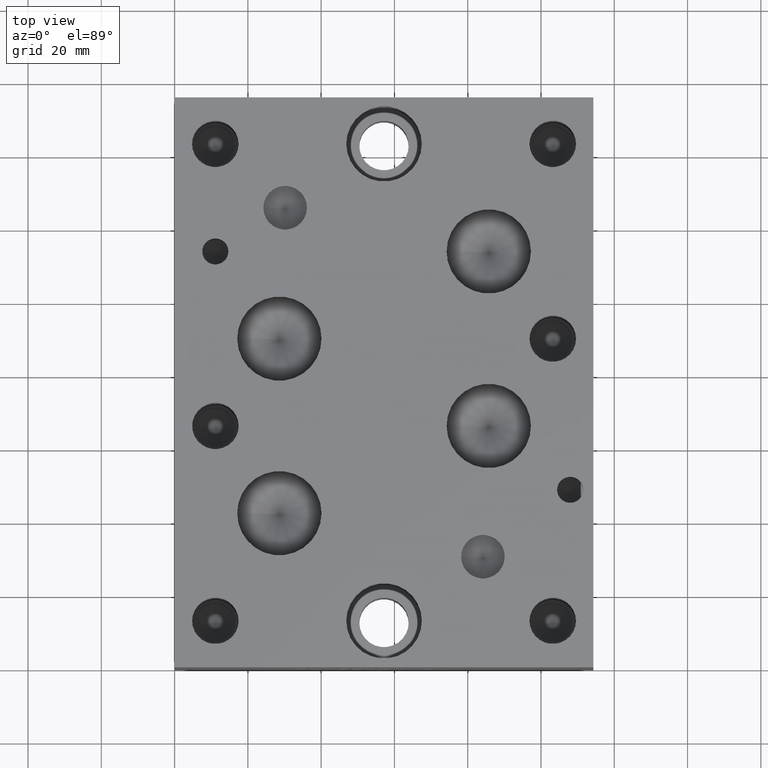
[diagram: clean part render]
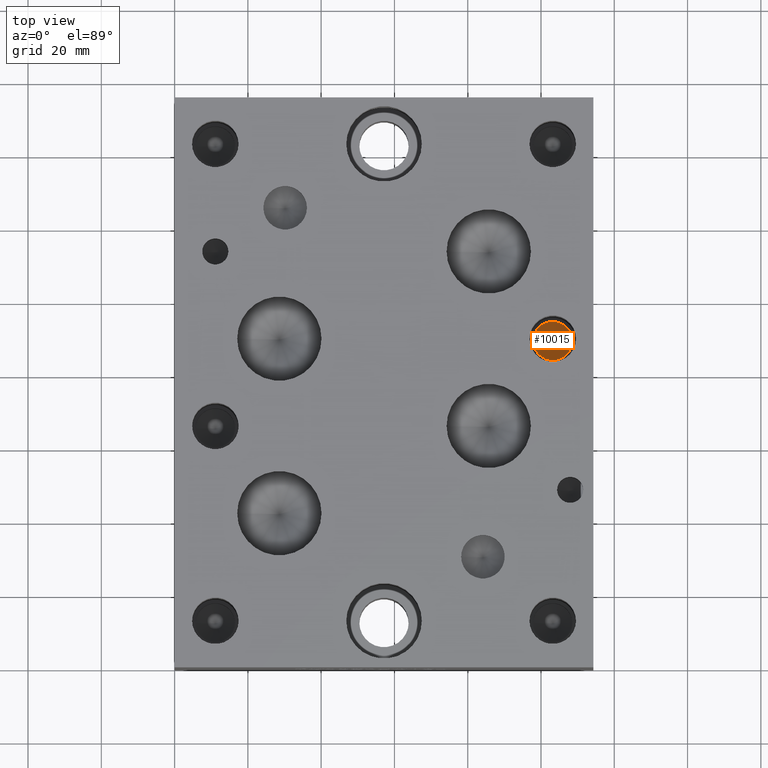
[diagram: same view with one face highlighted and labeled with its STEP entity id]
A machine part, top view. The second image highlights one B-rep face of the part: STEP entity #10015.
In plain terms, the highlighted conical surface has half-angle 60 deg.
Its self-contained STEP definition (entity closure, byte-faithful):
#65=CONICAL_SURFACE('',#10482,2.6797,1.0471975511966);
#163=CIRCLE('',#10483,5.3594);
#164=CIRCLE('',#10484,5.3594);
#1066=FACE_OUTER_BOUND('',#1633,.T.);
#1633=EDGE_LOOP('',(#8809,#8810,#8811,#8812));
#2613=LINE('',#17153,#3561);
#3561=VECTOR('',#12334,2.6797);
#4784=VERTEX_POINT('',#17149);
#4785=VERTEX_POINT('',#17150);
#4786=VERTEX_POINT('',#17152);
#6150=EDGE_CURVE('',#4784,#4785,#163,.T.);
#6151=EDGE_CURVE('',#4785,#4786,#2613,.T.);
#6152=EDGE_CURVE('',#4785,#4784,#164,.T.);
#8809=ORIENTED_EDGE('',*,*,#6150,.T.);
#8810=ORIENTED_EDGE('',*,*,#6151,.T.);
#8811=ORIENTED_EDGE('',*,*,#6151,.F.);
#8812=ORIENTED_EDGE('',*,*,#6152,.T.);
#10015=ADVANCED_FACE('',(#1066),#65,.F.);
#10482=AXIS2_PLACEMENT_3D('',#17148,#12330,#12331);
#10483=AXIS2_PLACEMENT_3D('',#17151,#12332,#12333);
#10484=AXIS2_PLACEMENT_3D('',#17154,#12335,#12336);
#12330=DIRECTION('center_axis',(0.,0.,1.));
#12331=DIRECTION('ref_axis',(1.,0.,0.));
#12332=DIRECTION('center_axis',(0.,0.,1.));
#12333=DIRECTION('ref_axis',(1.,0.,0.));
#12334=DIRECTION('',(0.866025403784439,1.06057523872491E-16,-0.5));
#12335=DIRECTION('center_axis',(0.,0.,1.));
#12336=DIRECTION('ref_axis',(1.,0.,0.));
#17148=CARTESIAN_POINT('Origin',(103.2002,89.7001,12.6768744836526));
#17149=CARTESIAN_POINT('',(108.5596,89.7001,14.224));
#17150=CARTESIAN_POINT('',(97.8408,89.7001,14.224));
#17151=CARTESIAN_POINT('Origin',(103.2002,89.7001,14.224));
#17152=CARTESIAN_POINT('',(103.2002,89.7001,11.1297489673051));
#17153=CARTESIAN_POINT('',(100.5205,89.7001,12.6768744836526));
#17154=CARTESIAN_POINT('Origin',(103.2002,89.7001,14.224));